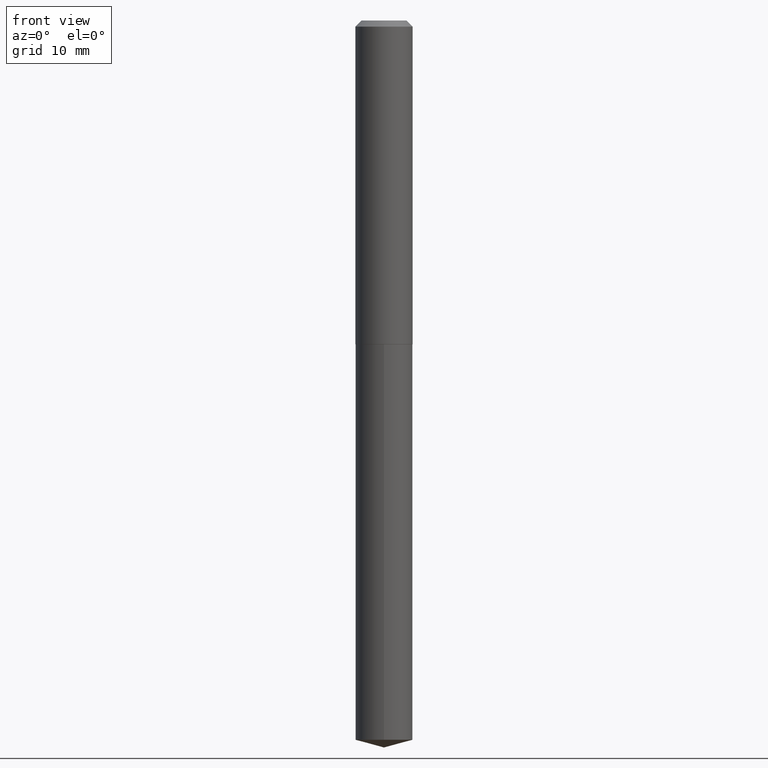
[diagram: clean part render]
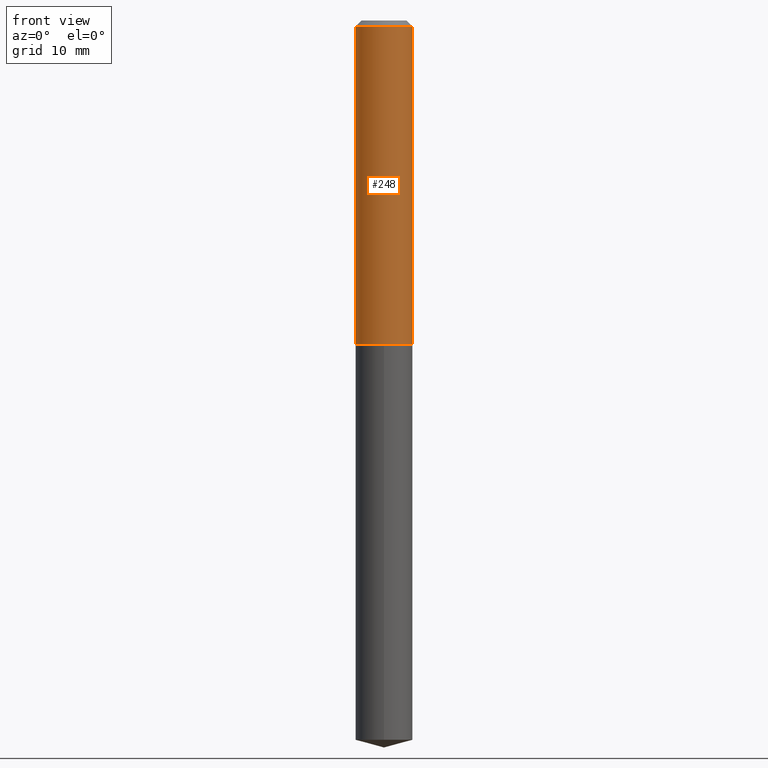
[diagram: same view with one face highlighted and labeled with its STEP entity id]
A machine part, front view. The second image highlights one B-rep face of the part: STEP entity #248.
In plain terms, the highlighted cylindrical surface (edge-blend (fillet) strip) has radius 3.7465 mm, axis along (-0, 0, 1).
Its self-contained STEP definition (entity closure, byte-faithful):
#9 = EDGE_CURVE ( 'NONE', #108, #114, #170, .T. ) ;
#24 = CARTESIAN_POINT ( 'NONE',  ( 7.642090019328604414E-31, -1.091087918388490513E-16, -0.03125000000000021511 ) ) ;
#34 = VECTOR ( 'NONE', #352, 39.37007874015748143 ) ;
#35 = CARTESIAN_POINT ( 'NONE',  ( 0.1475000000000002143, -6.859015090157358101E-15, -1.669500000000000428 ) ) ;
#44 = ORIENTED_EDGE ( 'NONE', *, *, #82, .T. ) ;
#46 = ORIENTED_EDGE ( 'NONE', *, *, #200, .T. ) ;
#55 = CARTESIAN_POINT ( 'NONE',  ( 4.082710171926086683E-29, -5.829028095198632341E-15, -1.669500000000000428 ) ) ;
#60 = LINE ( 'NONE', #206, #89 ) ;
#62 = DIRECTION ( 'NONE',  ( 1.000000000000000000, -6.982962677686265922E-15, 0.000000000000000000 ) ) ;
#82 = EDGE_CURVE ( 'NONE', #108, #257, #283, .T. ) ;
#89 = VECTOR ( 'NONE', #242, 39.37007874015748143 ) ;
#100 = EDGE_LOOP ( 'NONE', ( #376, #44, #46, #265 ) ) ;
#101 = AXIS2_PLACEMENT_3D ( 'NONE', #55, #366, #62 ) ;
#107 = CIRCLE ( 'NONE', #209, 0.1474999999999999922 ) ;
#108 = VERTEX_POINT ( 'NONE', #131 ) ;
#114 = VERTEX_POINT ( 'NONE', #182 ) ;
#126 = FACE_OUTER_BOUND ( 'NONE', #100, .T. ) ;
#131 = CARTESIAN_POINT ( 'NONE',  ( -0.1475000000000002143, -4.780977559952484031E-15, -1.669500000000000428 ) ) ;
#145 = EDGE_CURVE ( 'NONE', #114, #167, #107, .T. ) ;
#155 = DIRECTION ( 'NONE',  ( -2.445468806185136597E-29, 3.491481338843145583E-15, 1.000000000000000000 ) ) ;
#167 = VERTEX_POINT ( 'NONE', #246 ) ;
#170 = LINE ( 'NONE', #232, #34 ) ;
#182 = CARTESIAN_POINT ( 'NONE',  ( -0.1474999999999999922, -1.921017908272591621E-15, -0.03125000000000021511 ) ) ;
#200 = EDGE_CURVE ( 'NONE', #257, #167, #60, .T. ) ;
#201 = AXIS2_PLACEMENT_3D ( 'NONE', #280, #222, #311 ) ;
#206 = CARTESIAN_POINT ( 'NONE',  ( 0.1475000000000001033, -1.029986994958724971E-15, 7.192360744299009779E-30 ) ) ;
#209 = AXIS2_PLACEMENT_3D ( 'NONE', #24, #155, #272 ) ;
#222 = DIRECTION ( 'NONE',  ( -2.445468806185136597E-29, 3.491481338843145583E-15, 1.000000000000000000 ) ) ;
#232 = CARTESIAN_POINT ( 'NONE',  ( -0.1475000000000001033, 1.048050535246148508E-15, -7.255429258125991787E-30 ) ) ;
#242 = DIRECTION ( 'NONE',  ( -2.445468806185136877E-29, 3.491481338843145188E-15, 1.000000000000000000 ) ) ;
#246 = CARTESIAN_POINT ( 'NONE',  ( 0.1474999999999999922, -1.139095786797573283E-15, -0.03125000000000021511 ) ) ;
#248 = ADVANCED_FACE ( 'NONE', ( #126 ), #338, .T. ) ;
#257 = VERTEX_POINT ( 'NONE', #35 ) ;
#265 = ORIENTED_EDGE ( 'NONE', *, *, #145, .F. ) ;
#272 = DIRECTION ( 'NONE',  ( 1.000000000000000000, -6.982962677686265922E-15, 0.000000000000000000 ) ) ;
#280 = CARTESIAN_POINT ( 'NONE',  ( 0.000000000000000000, 0.000000000000000000, 0.000000000000000000 ) ) ;
#283 = CIRCLE ( 'NONE', #101, 0.1475000000000002143 ) ;
#311 = DIRECTION ( 'NONE',  ( 1.000000000000000000, -6.982962677686265922E-15, 4.876176775795935232E-29 ) ) ;
#338 = CYLINDRICAL_SURFACE ( 'NONE', #201, 0.1475000000000001033 ) ;
#352 = DIRECTION ( 'NONE',  ( -2.445468806185136877E-29, 3.491481338843145188E-15, 1.000000000000000000 ) ) ;
#366 = DIRECTION ( 'NONE',  ( -2.445468806185136597E-29, 3.491481338843145583E-15, 1.000000000000000000 ) ) ;
#376 = ORIENTED_EDGE ( 'NONE', *, *, #9, .F. ) ;